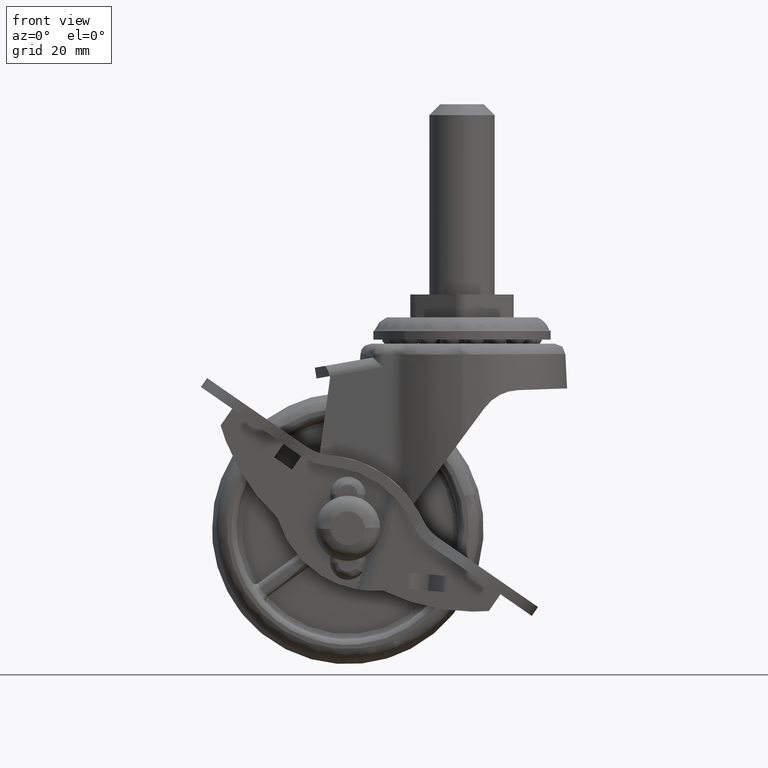
[diagram: clean part render]
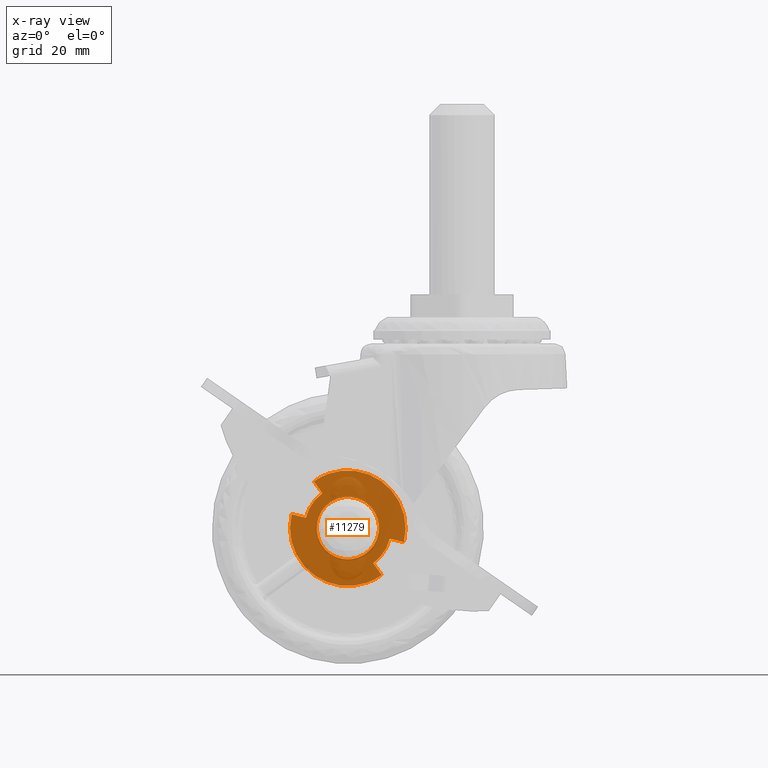
[diagram: x-ray — body ghosted, one internal face saturated and labeled with its STEP entity id]
A machine part, front view, then the same camera in x-ray: the body is ghosted and one INTERNAL B-rep face — a face not visible from any outside direction — is saturated and labeled: STEP entity #11279.
In plain terms, the highlighted face is a freeform B-spline surface patch.
Its self-contained STEP definition (entity closure, byte-faithful):
#3696=CARTESIAN_POINT('',(5.722775076373656,11.989463998556079,0.111748000848291));
#3697=VERTEX_POINT('',#3696);
#3698=CARTESIAN_POINT('',(0.0,11.989464000000000,5.723866007995312));
#3699=VERTEX_POINT('',#3698);
#3700=CARTESIAN_POINT('',(5.722775076373656,11.989463998556079,0.111748000848291));
#3701=CARTESIAN_POINT('',(5.712599607889946,11.989463998692919,0.643510890411428));
#3702=CARTESIAN_POINT('',(5.582959827138539,11.989463998900449,1.450313350544430));
#3703=CARTESIAN_POINT('',(5.162674987361238,11.989463999178460,2.530678637951836));
#3704=CARTESIAN_POINT('',(4.689473229608555,11.989463999384020,3.329843398623269));
#3705=CARTESIAN_POINT('',(3.998668264815783,11.989463999593310,4.143002171367860));
#3706=CARTESIAN_POINT('',(3.165785262561596,11.989463999766089,4.814716112292636));
#3707=CARTESIAN_POINT('',(2.238366441491728,11.989463999889910,5.295958100567659));
#3708=CARTESIAN_POINT('',(1.202346790723448,11.989463999976790,5.633670618366327));
#3709=CARTESIAN_POINT('',(0.462473145564816,11.989464000000030,5.723981618047572));
#3710=CARTESIAN_POINT('',(0.0,11.989464000000000,5.723866007995312));
#3711=B_SPLINE_CURVE_WITH_KNOTS('',3,(#3700,#3701,#3702,#3703,#3704,#3705,#3706,#3707,#3708,#3709,#3710),.UNSPECIFIED.,.F.,.U.,(4,1,1,1,1,1,1,1,4),(0.000000102153361,1.595503105332059,2.427945379425028,3.468489917344376,4.370324330319895,5.618944791405836,6.659495232695022,7.491940301107892,8.879326941521859),.UNSPECIFIED.);
#3712=EDGE_CURVE('',#3697,#3699,#3711,.T.);
#3714=CARTESIAN_POINT('',(-5.719799057974088,11.989463998032440,0.215733557481546));
#3715=VERTEX_POINT('',#3714);
#3716=CARTESIAN_POINT('',(0.0,11.989464000000000,5.723866007995312));
#3717=CARTESIAN_POINT('',(-0.411340238530470,11.989464000000030,5.723941998800883));
#3718=CARTESIAN_POINT('',(-1.165430560100078,11.989463999970820,5.642211723811803));
#3719=CARTESIAN_POINT('',(-2.150156070766765,11.989463999859939,5.331747222111316));
#3720=CARTESIAN_POINT('',(-2.947961536023050,11.989463999716200,4.929335379269042));
#3721=CARTESIAN_POINT('',(-3.773835908447934,11.989463999509690,4.351221340927749));
#3722=CARTESIAN_POINT('',(-4.573562842748492,11.989463999214101,3.523682886943264));
#3723=CARTESIAN_POINT('',(-5.188802420927622,11.989463998848009,2.498951360396633));
#3724=CARTESIAN_POINT('',(-5.588826696287874,11.989463998455481,1.399913064968110));
#3725=CARTESIAN_POINT('',(-5.703526585447071,11.989463998187411,0.649625179788335));
#3726=CARTESIAN_POINT('',(-5.719799057974088,11.989463998032440,0.215733557481546));
#3727=B_SPLINE_CURVE_WITH_KNOTS('',3,(#3716,#3717,#3718,#3719,#3720,#3721,#3722,#3723,#3724,#3725,#3726),.UNSPECIFIED.,.F.,.U.,(4,1,1,1,1,1,1,1,4),(0.000000103945904,1.234008500738118,2.262382168915639,3.085075244560504,3.907760023956065,5.278884590936613,6.512913667915203,7.472721533159636,8.775295489948071),.UNSPECIFIED.);
#3728=EDGE_CURVE('',#3699,#3715,#3727,.T.);
#3786=CARTESIAN_POINT('',(0.0,11.989464000000000,-5.723866007995309));
#3787=VERTEX_POINT('',#3786);
#3788=CARTESIAN_POINT('',(0.0,11.989464000000000,-5.723866007995309));
#3789=CARTESIAN_POINT('',(0.450402859432109,11.989464000078041,-5.723964237501411));
#3790=CARTESIAN_POINT('',(1.161505041424329,11.989464000166160,-5.639476918447641));
#3791=CARTESIAN_POINT('',(2.113567301054050,11.989464000206180,-5.340342052327419));
#3792=CARTESIAN_POINT('',(2.949481290994754,11.989464000183769,-4.939402877554977));
#3793=CARTESIAN_POINT('',(3.743699563274140,11.989464000084149,-4.370918034821653));
#3794=CARTESIAN_POINT('',(4.554527694331776,11.989463999875269,-3.533866226522626));
#3795=CARTESIAN_POINT('',(5.091228527292439,11.989463999614481,-2.686210067221604));
#3796=CARTESIAN_POINT('',(5.464963354094405,11.989463999293349,-1.761688014093407));
#3797=CARTESIAN_POINT('',(5.680637915683712,11.989463998974720,-0.908576336041392));
#3798=CARTESIAN_POINT('',(5.729756761736462,11.989463998705491,-0.243761203319167));
#3799=CARTESIAN_POINT('',(5.722775076373656,11.989463998556079,0.111748000848291));
#3800=B_SPLINE_CURVE_WITH_KNOTS('',3,(#3788,#3789,#3790,#3791,#3792,#3793,#3794,#3795,#3796,#3797,#3798,#3799),.UNSPECIFIED.,.F.,.U.,(4,1,1,1,1,1,1,1,1,4),(0.000000106675378,1.351186191283371,2.133476292593366,2.986870502819693,4.124757990393702,5.049218036947769,6.471544500268445,7.111597649112651,8.036110973732988,9.102841348605589),.UNSPECIFIED.);
#3801=EDGE_CURVE('',#3787,#3697,#3800,.T.);
#3807=CARTESIAN_POINT('',(-5.719799057974088,11.989463998032440,0.215733557481546));
#3808=CARTESIAN_POINT('',(-5.742740706902867,11.989463998376729,-0.383280014999872));
#3809=CARTESIAN_POINT('',(-5.626515313529063,11.989463998893550,-1.347153931427157));
#3810=CARTESIAN_POINT('',(-5.129186877677866,11.989463999496090,-2.626647412583970));
#3811=CARTESIAN_POINT('',(-4.542017042731950,11.989463999869150,-3.539124950949666));
#3812=CARTESIAN_POINT('',(-3.746301131456500,11.989464000149040,-4.375896883063410));
#3813=CARTESIAN_POINT('',(-2.879615802686991,11.989464000284800,-4.989118954412739));
#3814=CARTESIAN_POINT('',(-1.935455582490012,11.989464000294310,-5.411776521229622));
#3815=CARTESIAN_POINT('',(-1.006977303328396,11.989464000210271,-5.662647672579308));
#3816=CARTESIAN_POINT('',(-0.359640826509070,11.989464000087500,-5.723907380454628));
#3817=CARTESIAN_POINT('',(0.0,11.989464000000000,-5.723866007995309));
#3818=B_SPLINE_CURVE_WITH_KNOTS('',3,(#3807,#3808,#3809,#3810,#3811,#3812,#3813,#3814,#3815,#3816,#3817),.UNSPECIFIED.,.F.,.U.,(4,1,1,1,1,1,1,1,4),(0.000000112711598,1.798216395176709,2.877158295771075,4.099951738424209,5.034974908547899,6.329715363173976,7.264805253942057,8.127951476810960,9.206872945254554),.UNSPECIFIED.);
#3819=EDGE_CURVE('',#3715,#3787,#3818,.T.);
#10604=CARTESIAN_POINT('',(3.979572368598675,11.989464000000000,-6.892821534810160));
#10605=VERTEX_POINT('',#10604);
#10611=CARTESIAN_POINT('',(5.317063177786360,11.989464000000000,-9.209423570979650));
#10612=VERTEX_POINT('',#10611);
#10613=CARTESIAN_POINT('',(3.979572368598675,11.989464000000000,-6.892821534810160));
#10614=CARTESIAN_POINT('',(5.317063177786360,11.989464000000000,-9.209423570979650));
#10615=QUASI_UNIFORM_CURVE('',1,(#10613,#10614),.UNSPECIFIED.,.F.,.U.);
#10616=EDGE_CURVE('',#10605,#10612,#10615,.T.);
#10635=CARTESIAN_POINT('',(9.992810064836659,11.989464000000000,-3.637085420276280));
#10636=VERTEX_POINT('',#10635);
#10645=CARTESIAN_POINT('',(7.479149577311381,11.989464000000440,-2.722187823765980));
#10646=VERTEX_POINT('',#10645);
#10647=CARTESIAN_POINT('',(9.992810064836659,11.989464000000000,-3.637085420276280));
#10648=CARTESIAN_POINT('',(7.479149577311381,11.989464000000440,-2.722187823765980));
#10649=QUASI_UNIFORM_CURVE('',1,(#10647,#10648),.UNSPECIFIED.,.F.,.U.);
#10650=EDGE_CURVE('',#10636,#10646,#10649,.T.);
#10693=CARTESIAN_POINT('',(3.979572368598675,11.989464000000000,-6.892821534810160));
#10694=CARTESIAN_POINT('',(4.480890215945512,11.989464000000000,-6.603501291176324));
#10695=CARTESIAN_POINT('',(5.419913751879864,11.989464000000030,-5.914806890968302));
#10696=CARTESIAN_POINT('',(6.648483836572139,11.989464000000201,-4.513991897796336));
#10697=CARTESIAN_POINT('',(7.241764222847482,11.989464000000311,-3.374949826775318));
#10698=CARTESIAN_POINT('',(7.479149577311381,11.989464000000440,-2.722187823765980));
#10699=B_SPLINE_CURVE_WITH_KNOTS('',3,(#10693,#10694,#10695,#10696,#10697,#10698),.UNSPECIFIED.,.F.,.U.,(4,1,1,4),(0.000000017974642,1.736424768456845,3.472848839993429,5.556558800127839),.UNSPECIFIED.);
#10700=EDGE_CURVE('',#10605,#10646,#10699,.T.);
#11007=CARTESIAN_POINT('',(-9.992810064836668,11.989464000000000,3.637085420276265));
#11008=VERTEX_POINT('',#11007);
#11017=CARTESIAN_POINT('',(-7.479149577311381,11.989464000000000,2.722187823765985));
#11018=VERTEX_POINT('',#11017);
#11019=CARTESIAN_POINT('',(-9.992810064836668,11.989464000000000,3.637085420276265));
#11020=CARTESIAN_POINT('',(-7.479149577311381,11.989464000000000,2.722187823765985));
#11021=QUASI_UNIFORM_CURVE('',1,(#11019,#11020),.UNSPECIFIED.,.F.,.U.);
#11022=EDGE_CURVE('',#11008,#11018,#11021,.T.);
#11052=CARTESIAN_POINT('',(-3.979572368598666,11.989464000000000,6.892821534810170));
#11053=VERTEX_POINT('',#11052);
#11059=CARTESIAN_POINT('',(-5.317063177786370,11.989464000000000,9.209423570979640));
#11060=VERTEX_POINT('',#11059);
#11061=CARTESIAN_POINT('',(-3.979572368598666,11.989464000000000,6.892821534810170));
#11062=CARTESIAN_POINT('',(-5.317063177786370,11.989464000000000,9.209423570979640));
#11063=QUASI_UNIFORM_CURVE('',1,(#11061,#11062),.UNSPECIFIED.,.F.,.U.);
#11064=EDGE_CURVE('',#11053,#11060,#11063,.T.);
#11103=CARTESIAN_POINT('',(-3.979572368598666,11.989464000000000,6.892821534810170));
#11104=CARTESIAN_POINT('',(-4.430742795042591,11.989464000000019,6.632413806095210));
#11105=CARTESIAN_POINT('',(-5.210715321060090,11.989463999999980,6.073362306394042));
#11106=CARTESIAN_POINT('',(-6.200228201256624,11.989464000000019,5.050960753139381));
#11107=CARTESIAN_POINT('',(-6.954701732227582,11.989463999999970,3.947991005628776));
#11108=CARTESIAN_POINT('',(-7.330704718183508,11.989464000000030,3.130123574879634));
#11109=CARTESIAN_POINT('',(-7.479149577311381,11.989464000000000,2.722187823765985));
#11110=B_SPLINE_CURVE_WITH_KNOTS('',3,(#11103,#11104,#11105,#11106,#11107,#11108,#11109),.UNSPECIFIED.,.F.,.U.,(4,1,1,1,4),(0.000000017974410,1.562784493771281,2.865087727849352,4.254241016768039,5.556558800127845),.UNSPECIFIED.);
#11111=EDGE_CURVE('',#11053,#11018,#11110,.T.);
#11217=CARTESIAN_POINT('',(-11.693317443691090,11.989464000000000,-11.689341913147020));
#11218=CARTESIAN_POINT('',(-11.693317443691090,11.989464000000000,11.689361677011780));
#11219=CARTESIAN_POINT('',(11.693233408867201,11.989464000000000,-11.689341913147020));
#11220=CARTESIAN_POINT('',(11.693233408867201,11.989464000000000,11.689361677011780));
#11221=B_SPLINE_SURFACE_WITH_KNOTS('',1,1,((#11217,#11219),(#11218,#11220)),.UNSPECIFIED.,.F.,.F.,.U.,(2,2),(2,2),(0.0,23.378703590158789),(0.0,23.386550852558290),.UNSPECIFIED.);
#11222=ORIENTED_EDGE('',*,*,#10650,.F.);
#11223=CARTESIAN_POINT('',(9.992810064836659,11.989464000000000,-3.637085420276280));
#11224=CARTESIAN_POINT('',(10.201116513286300,11.989463999999989,-3.064839261658341));
#11225=CARTESIAN_POINT('',(10.581060681283139,11.989464000000050,-1.654891128156346));
#11226=CARTESIAN_POINT('',(10.699551587580860,11.989463999999900,0.386127112707371));
#11227=CARTESIAN_POINT('',(10.429345100603250,11.989464000000149,2.267788997946429));
#11228=CARTESIAN_POINT('',(9.885759047098356,11.989463999999920,4.087262684901297));
#11229=CARTESIAN_POINT('',(8.994786048516398,11.989463999999950,5.813080184281284));
#11230=CARTESIAN_POINT('',(7.774879442992872,11.989464000000019,7.315922538148808));
#11231=CARTESIAN_POINT('',(6.518656219933992,11.989464000000130,8.454522612360828));
#11232=CARTESIAN_POINT('',(5.215135585279605,11.989463999999829,9.315276576605697));
#11233=CARTESIAN_POINT('',(3.736238983959636,11.989464000000380,9.995084139991294));
#11234=CARTESIAN_POINT('',(2.467268223650672,11.989463999999179,10.370591794979500));
#11235=CARTESIAN_POINT('',(1.065062292177813,11.989464000000339,10.608979871397169));
#11236=CARTESIAN_POINT('',(-0.291404205817147,11.989463999999909,10.669137445006729));
#11237=CARTESIAN_POINT('',(-1.977786259755492,11.989464000000179,10.493772417102850));
#11238=CARTESIAN_POINT('',(-3.651650811981902,11.989463999999510,10.046474352935210));
#11239=CARTESIAN_POINT('',(-4.789679533255088,11.989464000000670,9.513955473933134));
#11240=CARTESIAN_POINT('',(-5.317063177786370,11.989464000000000,9.209423570979640));
#11241=B_SPLINE_CURVE_WITH_KNOTS('',3,(#11223,#11224,#11225,#11226,#11227,#11228,#11229,#11230,#11231,#11232,#11233,#11234,#11235,#11236,#11237,#11238,#11239,#11240),.UNSPECIFIED.,.F.,.U.,(4,1,1,1,1,1,1,1,1,1,1,1,1,1,1,4),(0.000000146363163,1.826964218543729,4.364521544546328,6.090037705047045,7.511055166572501,10.048571627123270,11.875597160793610,13.296532605520710,15.123555784995350,16.544599890588799,18.168616184625620,19.082121274038659,20.807640603778740,22.228675055912589,24.157186545778590,25.984171147661190),.UNSPECIFIED.);
#11242=EDGE_CURVE('',#10636,#11060,#11241,.T.);
#11243=ORIENTED_EDGE('',*,*,#11242,.T.);
#11244=ORIENTED_EDGE('',*,*,#11064,.F.);
#11245=ORIENTED_EDGE('',*,*,#11111,.T.);
#11246=ORIENTED_EDGE('',*,*,#11022,.F.);
#11247=CARTESIAN_POINT('',(-9.992810064836668,11.989464000000000,3.637085420276265));
#11248=CARTESIAN_POINT('',(-10.201142823686229,11.989463999999980,3.064840306699894));
#11249=CARTESIAN_POINT('',(-10.519087369829199,11.989464000000050,1.884411219021718));
#11250=CARTESIAN_POINT('',(-10.689553502338320,11.989464000000019,0.024489632568994));
#11251=CARTESIAN_POINT('',(-10.542027408739401,11.989463999999950,-1.701849524215840));
#11252=CARTESIAN_POINT('',(-10.142680171244651,11.989464000000050,-3.314700643329873));
#11253=CARTESIAN_POINT('',(-9.580742724981345,11.989463999999980,-4.697931779977623));
#11254=CARTESIAN_POINT('',(-8.759257375970735,11.989463999999950,-6.103062000513370));
#11255=CARTESIAN_POINT('',(-7.860476283043031,11.989464000000149,-7.210478378344083));
#11256=CARTESIAN_POINT('',(-6.750834912163478,11.989463999999650,-8.255460584501980));
#11257=CARTESIAN_POINT('',(-5.650960309796106,11.989464000000099,-9.051586743365450));
#11258=CARTESIAN_POINT('',(-4.330305955829717,11.989464000000041,-9.744790855978954));
#11259=CARTESIAN_POINT('',(-2.931087499971794,11.989463999999961,-10.262765495580190));
#11260=CARTESIAN_POINT('',(-1.469253831680797,11.989464000000011,-10.569097902273651));
#11261=CARTESIAN_POINT('',(0.086956466250859,11.989464000000041,-10.667899997818539));
#11262=CARTESIAN_POINT('',(1.541950060198450,11.989464000000019,-10.558573842196020));
#11263=CARTESIAN_POINT('',(3.362763394524108,11.989463999999700,-10.154957926817991));
#11264=CARTESIAN_POINT('',(4.584636255855748,11.989464000000480,-9.632510216369504));
#11265=CARTESIAN_POINT('',(5.317063177786360,11.989464000000000,-9.209423570979650));
#11266=B_SPLINE_CURVE_WITH_KNOTS('',3,(#11247,#11248,#11249,#11250,#11251,#11252,#11253,#11254,#11255,#11256,#11257,#11258,#11259,#11260,#11261,#11262,#11263,#11264,#11265),.UNSPECIFIED.,.F.,.U.,(4,1,1,1,1,1,1,1,1,1,1,1,1,1,1,1,4),(0.000000146361788,1.826964218542450,3.654014160918077,5.582536252904671,7.003552712438115,8.627578739688509,10.048571627122390,11.875597160792710,12.890618171944860,14.616051594434859,15.935568710794611,17.356610878168919,19.082121274037970,20.401638726094252,22.025651794727580,23.446694773447302,25.984171147661179),.UNSPECIFIED.);
#11267=EDGE_CURVE('',#11008,#10612,#11266,.T.);
#11268=ORIENTED_EDGE('',*,*,#11267,.T.);
#11269=ORIENTED_EDGE('',*,*,#10616,.F.);
#11270=ORIENTED_EDGE('',*,*,#10700,.T.);
#11271=EDGE_LOOP('',(#11222,#11243,#11244,#11245,#11246,#11268,#11269,#11270));
#11272=FACE_OUTER_BOUND('',#11271,.T.);
#11273=ORIENTED_EDGE('',*,*,#3728,.F.);
#11274=ORIENTED_EDGE('',*,*,#3712,.F.);
#11275=ORIENTED_EDGE('',*,*,#3801,.F.);
#11276=ORIENTED_EDGE('',*,*,#3819,.F.);
#11277=EDGE_LOOP('',(#11273,#11274,#11275,#11276));
#11278=FACE_BOUND('',#11277,.T.);
#11279=ADVANCED_FACE('',(#11272,#11278),#11221,.F.);